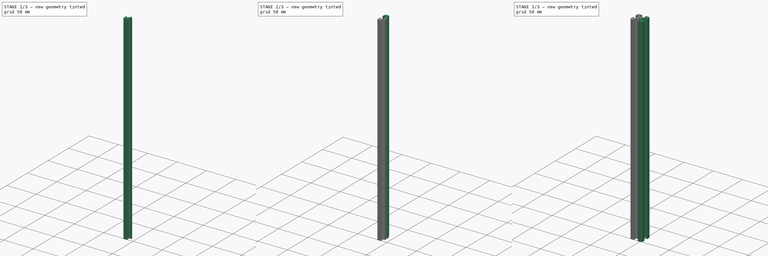
[diagram: build sequence overview — one tinted view per stage of 3, left to right]
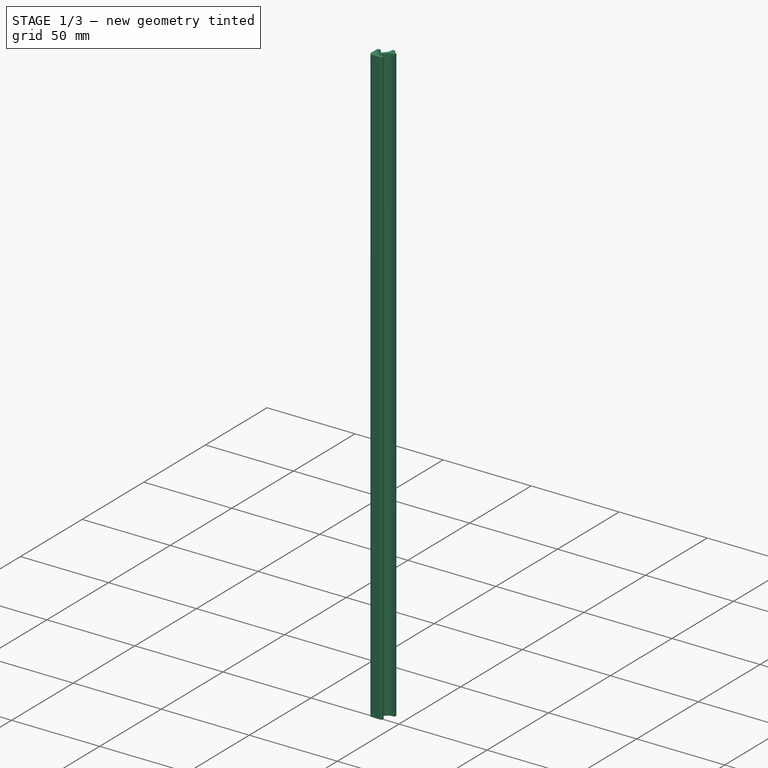
[diagram: stage 1 of 3 — iso view after this stage's code; geometry added in this stage tinted green]
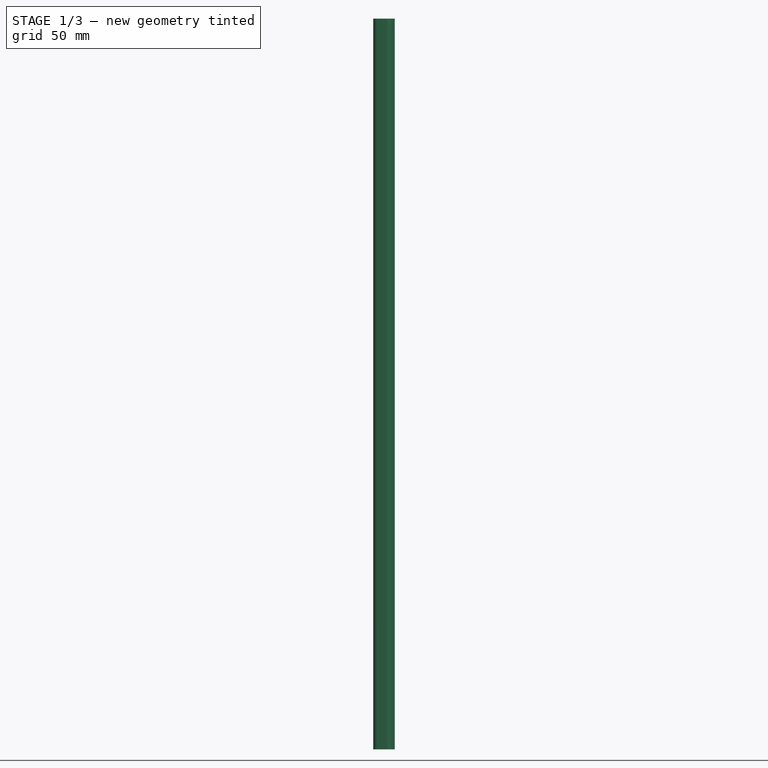
[diagram: stage 1 of 3 — front view after this stage's code; geometry added in this stage tinted green]
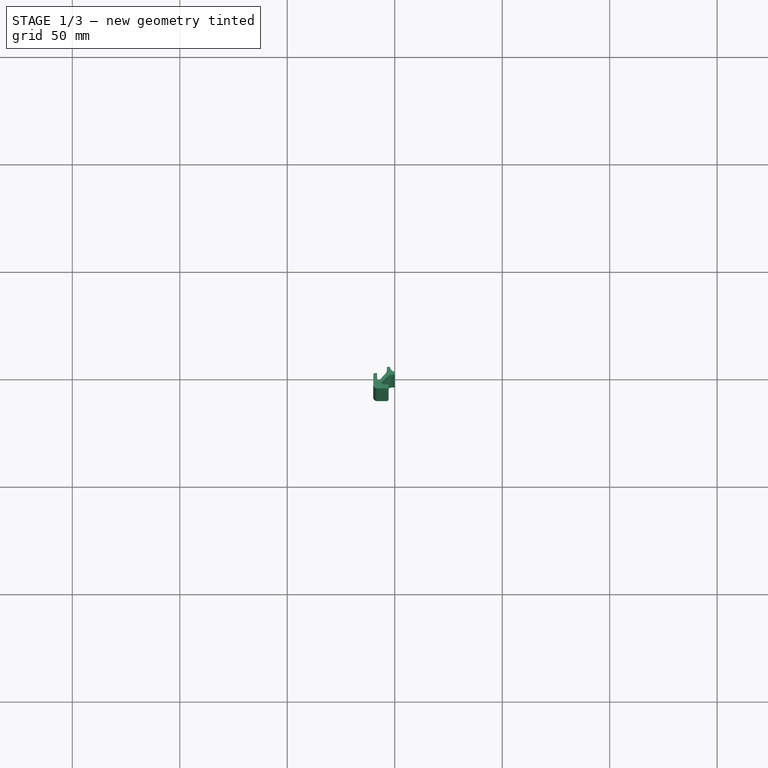
[diagram: stage 1 of 3 — top view after this stage's code; geometry added in this stage tinted green]
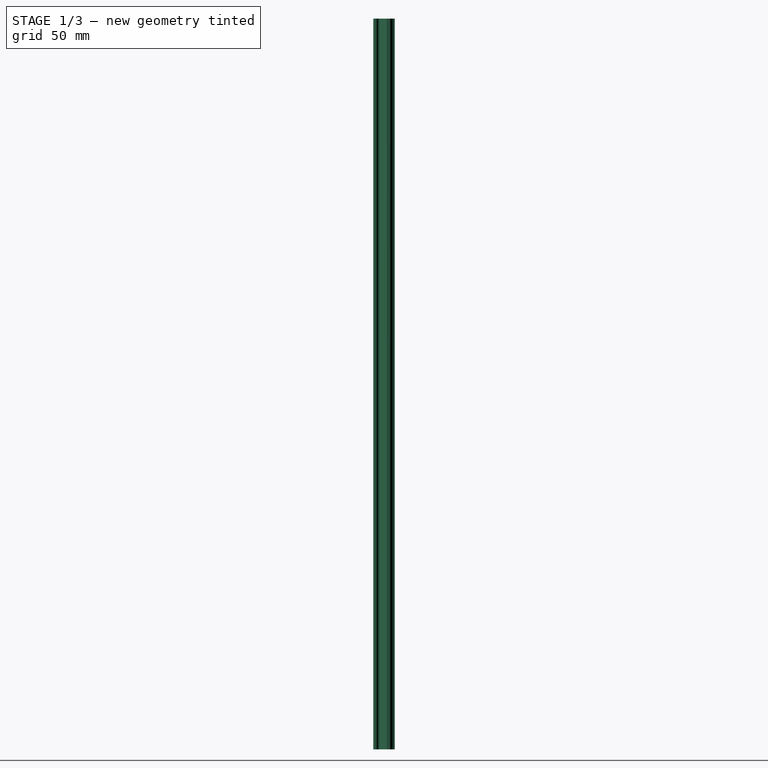
[diagram: stage 1 of 3 — right view after this stage's code; geometry added in this stage tinted green]
FCSTD DOCUMENT  (FreeCAD 1.0R39109 (Git))
Label: 20x20-I-Type-340mm
License: All rights reserved
LicenseURL: https://en.wikipedia.org/wiki/All_rights_reserved
objects: Part::Mirroring×2, Part::MultiFuse×2, Sketcher::SketchObject×1, PartDesign::Pad×1, PartDesign::Body×1
note: 10 computed .brp shape members not serialized (recipe doc carries the construction recipe); baked Part::Feature solids carry a one-line shape summary decoded from their .brp

FEATURE [Sketcher::SketchObject] Sketch
  ArcFitTolerance = 0
  AttachmentSupport = -> [XY_Plane]
  FullyConstrained = true
  MakeInternals = false
  MapMode = 5
  sketch-geometry (22):
    g0: ArcOfCircle CenterX=0 CenterY=0 CenterZ=0 NormalX=0 NormalY=0 NormalZ=1 AngleXU=0 Radius=2.15 StartAngle=1.5708 EndAngle=3.14159
    g1: LineSegment StartX=-8.28947 StartY=10 StartZ=0 EndX=-3.65947 EndY=10 EndZ=0
    g2: LineSegment StartX=-2.85947 StartY=9.2 StartZ=0 EndX=-2.85947 EndY=8.5 EndZ=0
    g3: LineSegment StartX=-3.15947 StartY=8.2 StartZ=0 EndX=-5.32947 EndY=8.2 EndZ=0
    g4: LineSegment StartX=-5.8555 StartY=6.87 StartZ=0 EndX=-3.36 EndY=4.53 EndZ=0
    g5: LineSegment StartX=-1.135 StartY=3.65 StartZ=0 EndX=2e-16 EndY=3.65 EndZ=0
    g6: LineSegment StartX=1e-16 StartY=3.65 StartZ=0 EndX=1e-16 EndY=2.15 EndZ=0
    g7: LineSegment StartX=-10 StartY=8.28947 StartZ=0 EndX=-10 EndY=3.65947 EndZ=0
    g8: LineSegment StartX=-9.2 StartY=2.85947 StartZ=0 EndX=-8.5 EndY=2.85947 EndZ=0
    g9: LineSegment StartX=-8.2 StartY=3.15947 StartZ=0 EndX=-8.2 EndY=5.32947 EndZ=0
    g10: LineSegment StartX=-6.87 StartY=5.8555 StartZ=0 EndX=-4.53 EndY=3.36 EndZ=0
    g11: ArcOfCircle CenterX=-8.28947 CenterY=8.28947 CenterZ=0 NormalX=0 NormalY=0 NormalZ=1 AngleXU=0 Radius=1.71053 StartAngle=1.5708 EndAngle=3.14159
    g12: ArcOfCircle CenterX=-9.2 CenterY=3.65947 CenterZ=0 NormalX=0 NormalY=0 NormalZ=1 AngleXU=0 Radius=0.8 StartAngle=3.14159 EndAngle=4.71239
    g13: ArcOfCircle CenterX=-8.5 CenterY=3.15947 CenterZ=0 NormalX=0 NormalY=0 NormalZ=1 AngleXU=0 Radius=0.3 StartAngle=4.71239 EndAngle=6.28319
    g14: ArcOfCircle CenterX=-7.43098 CenterY=5.32947 CenterZ=0 NormalX=0 NormalY=0 NormalZ=1 AngleXU=0 Radius=0.769022 StartAngle=0.753252 EndAngle=3.14159
    g15: ArcOfCircle CenterX=-1.135 CenterY=6.90286 CenterZ=0 NormalX=0 NormalY=0 NormalZ=1 AngleXU=0 Radius=3.25286 StartAngle=3.95914 EndAngle=4.71239
    g16: ArcOfCircle CenterX=-5.32947 CenterY=7.43098 CenterZ=0 NormalX=0 NormalY=0 NormalZ=1 AngleXU=0 Radius=0.769022 StartAngle=1.5708 EndAngle=3.95914
    g17: ArcOfCircle CenterX=-3.15947 CenterY=8.5 CenterZ=0 NormalX=0 NormalY=0 NormalZ=1 AngleXU=0 Radius=0.3 StartAngle=4.71239 EndAngle=6.28319
    g18: ArcOfCircle CenterX=-3.65947 CenterY=9.2 CenterZ=0 NormalX=0 NormalY=0 NormalZ=1 AngleXU=0 Radius=0.8 StartAngle=4e-16 EndAngle=1.5708
    g19: LineSegment StartX=-3.65 StartY=1.135 StartZ=0 EndX=-3.65 EndY=2e-16 EndZ=0
    g20: LineSegment StartX=-3.65 StartY=3e-16 StartZ=0 EndX=-2.15 EndY=3e-16 EndZ=0
    g21: ArcOfCircle CenterX=-6.90286 CenterY=1.135 CenterZ=0 NormalX=0 NormalY=0 NormalZ=1 AngleXU=0 Radius=3.25286 StartAngle=0 EndAngle=0.753252
  constraints (57):
    c: Diameter(g0) = 4.3
    c: Horizontal(g1)
    c: Coincident(g5,g6)
    c: Vertical(g6)
    c: Vertical(g7)
    c: Tangent(g7,g11) = -1.5708
    c: Tangent(g1,g11) = 1.5708
    c: Tangent(g7,g12) = -1.5708
    c: Tangent(g8,g12) = -1.5708
    c: Tangent(g8,g13) = -1.5708
    c: Tangent(g9,g13) = -1.5708
    c: Tangent(g9,g14) = 1.5708
    c: Tangent(g10,g14) = 1.5708
    c: Tangent(g4,g15) = -1.5708
    c: Tangent(g5,g15) = -1.5708
    c: Tangent(g4,g16) = -1.5708
    c: Tangent(g3,g16) = -1.5708
    c: Tangent(g3,g17) = 1.5708
    c: Tangent(g2,g17) = 1.5708
    c: Tangent(g2,g18) = 1.5708
    c: Tangent(g1,g18) = 1.5708
    c: Vertical(g19)
    c: Coincident(g19,g20)
    c: Horizontal(g20)
    c: Tangent(g10,g21) = 1.5708
    c: Tangent(g19,g21) = 1.5708
    c: DistanceY(g6,g6) = 1.5
    c: DistanceX(g20,g20) = 1.5
    c: DistanceY(g0,g20) = 0
    c: DistanceX(g6,g0) = 0
    c: Coincident(g0,g20)
    c: Coincident(g0,g6)
    c: DistanceX(g7,g0) = 10
    c: DistanceY(g0,g1) = 10
    c: Horizontal(g5)
    c: DistanceX(g5,g5) = 1.135
    c: DistanceY(g19,g19) = 1.135
    c: DistanceX(g1,g1) = 4.63
    c: DistanceY(g7,g7) = 4.63
    c: DistanceX(g4,g0) = 3.36
    c: DistanceY(g0,g4) = 2.38
    c: DistanceY(g0,g10) = 3.36
    c: DistanceX(g10,g0) = 2.38
    c: DistanceY(g0,g4) = 4.72
    c: DistanceX(g10,g0) = 4.72
    c: DistanceX(g3,g3) = 2.17
    c: DistanceY(g9,g9) = 2.17
    c: Horizontal(g3)
    c: Vertical(g9)
    c: DistanceY(g3,g1) = 1.8
    c: DistanceX(g7,g9) = 1.8
    c: DistanceY(g3,g2) = 0.3
    c: DistanceX(g1,g2) = 0.8
    c: DistanceY(g2,g1) = 0.8
    c: DistanceY(g8,g9) = 0.3
    c: DistanceY(g8,g7) = 0.8
    c: Coincident(g0,g-1)
FEATURE [PartDesign::Pad] Pad  label="SetLength"
  Direction = (0,0,1)
  Length = 340
  Length2 = 10
  Profile = -> Sketch
  ReferenceAxis = -> Sketch [N_Axis]
  Suppressed = false
  Type = 0
FEATURE [PartDesign::Body] Body
  AllowCompound = false
  Group = -> [Sketch,Pad]
  Origin = -> Origin
  Tip = -> Pad
FEATURE [Part::Mirroring] Part__Mirroring  label="SetLength (Mirror #1)"
  Base = (0,0,0)
  Normal = (0,1,0)
  Source = -> Pad
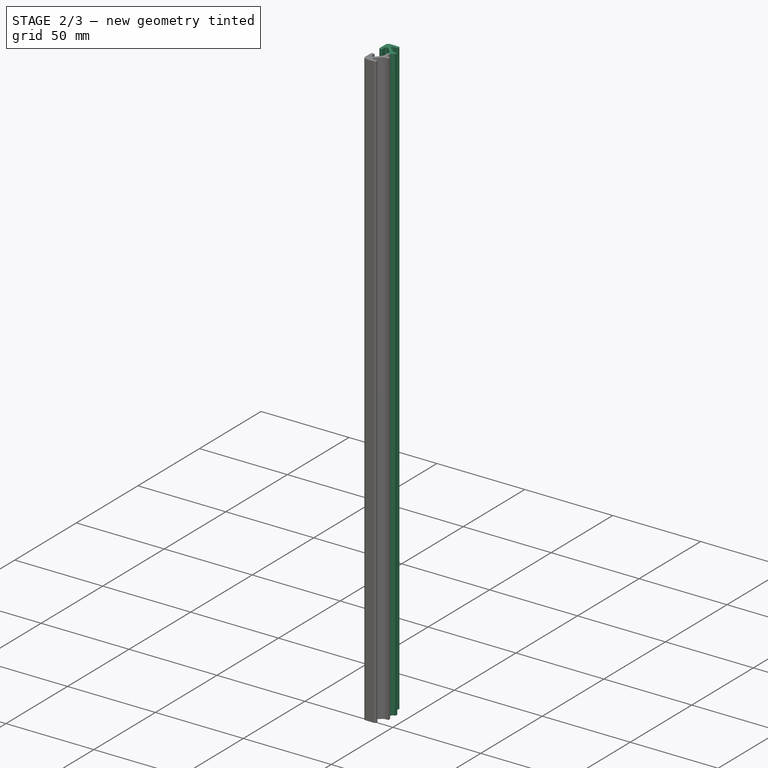
[diagram: stage 2 of 3 — iso view after this stage's code; geometry added in this stage tinted green]
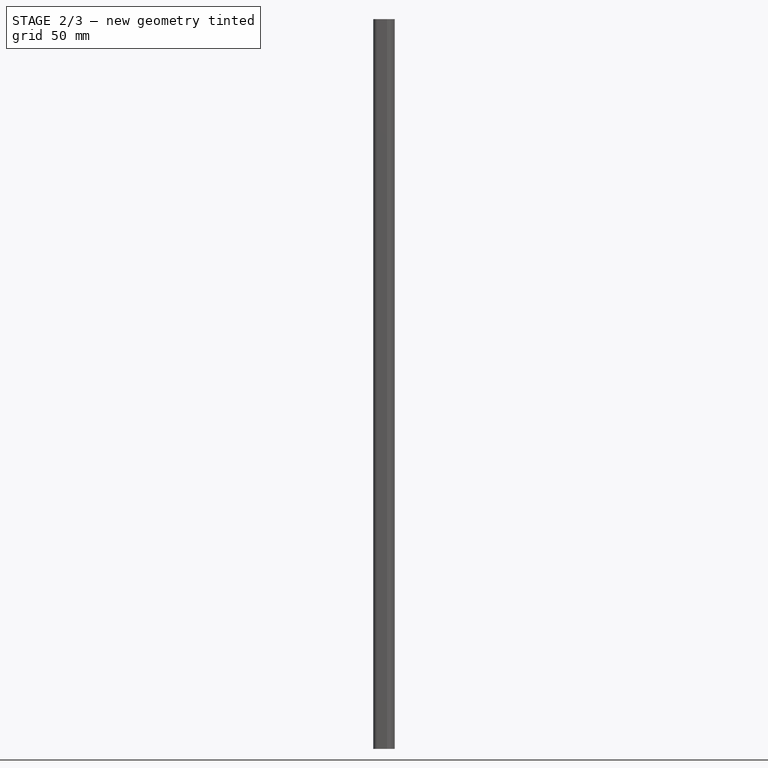
[diagram: stage 2 of 3 — front view after this stage's code; geometry added in this stage tinted green]
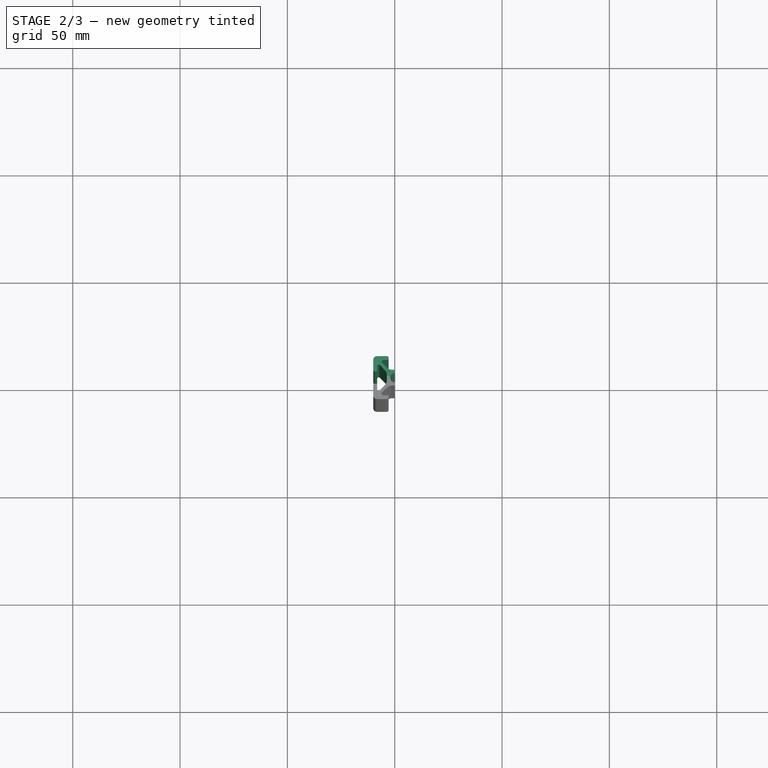
[diagram: stage 2 of 3 — top view after this stage's code; geometry added in this stage tinted green]
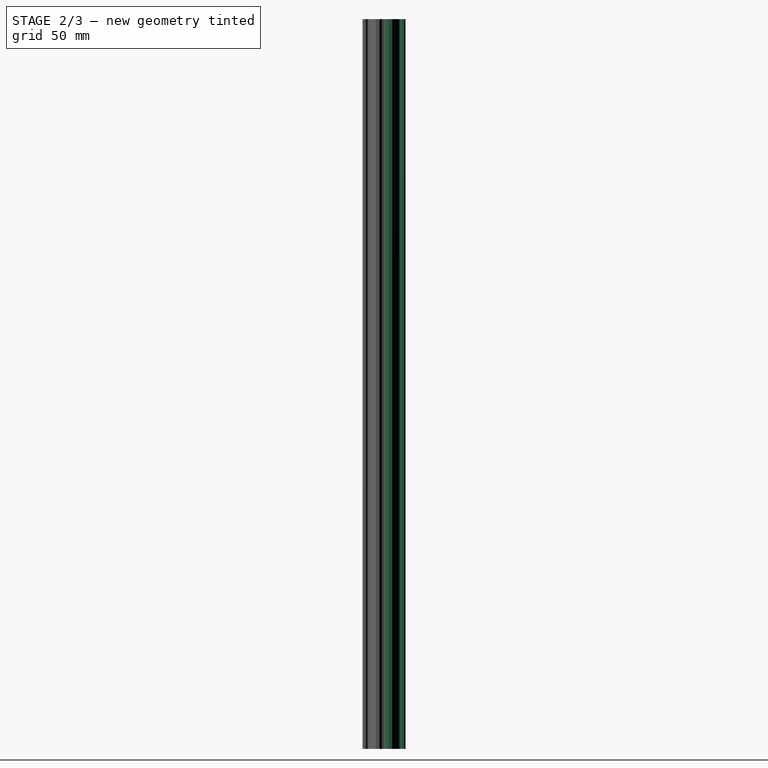
[diagram: stage 2 of 3 — right view after this stage's code; geometry added in this stage tinted green]
FEATURE [Part::MultiFuse] Fusion
  Shapes = -> [Part__Mirroring,Pad]
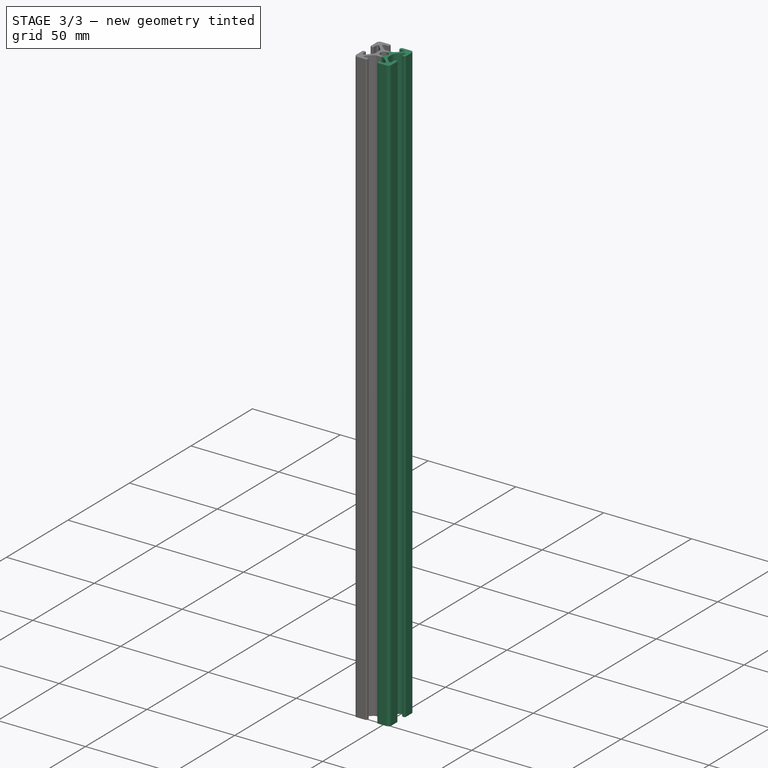
[diagram: stage 3 of 3 — iso view after this stage's code; geometry added in this stage tinted green]
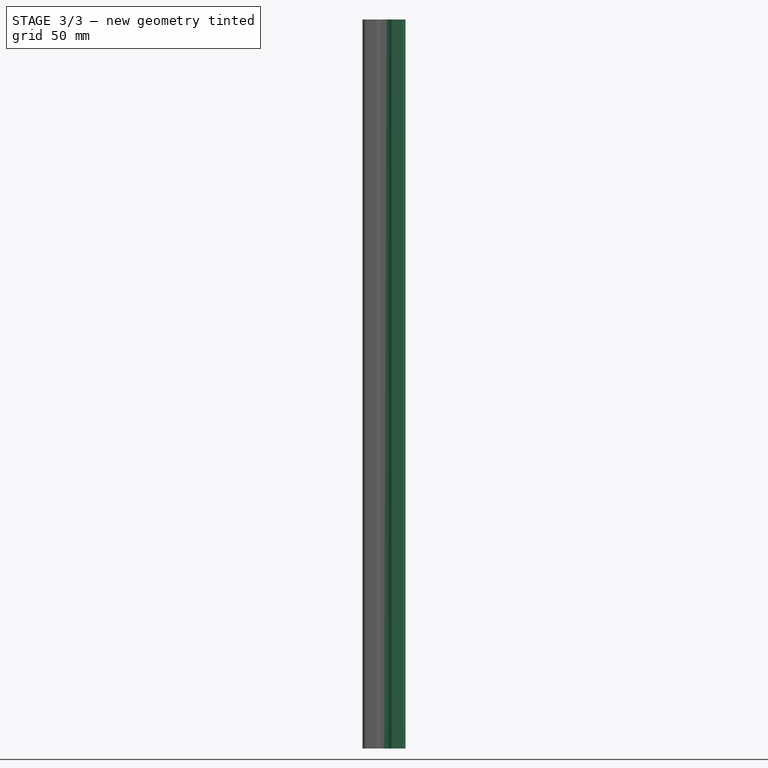
[diagram: stage 3 of 3 — front view after this stage's code; geometry added in this stage tinted green]
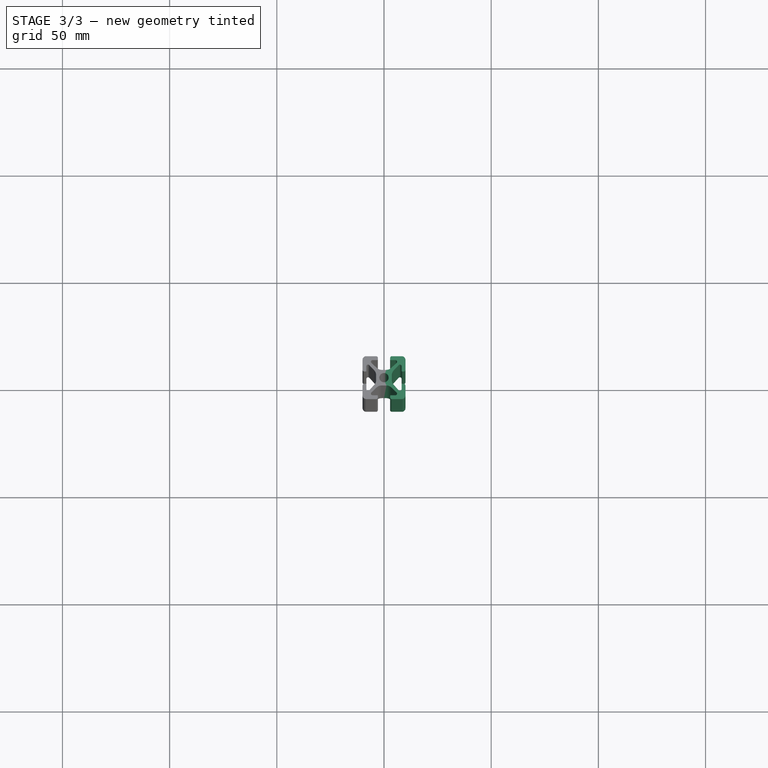
[diagram: stage 3 of 3 — top view after this stage's code; geometry added in this stage tinted green]
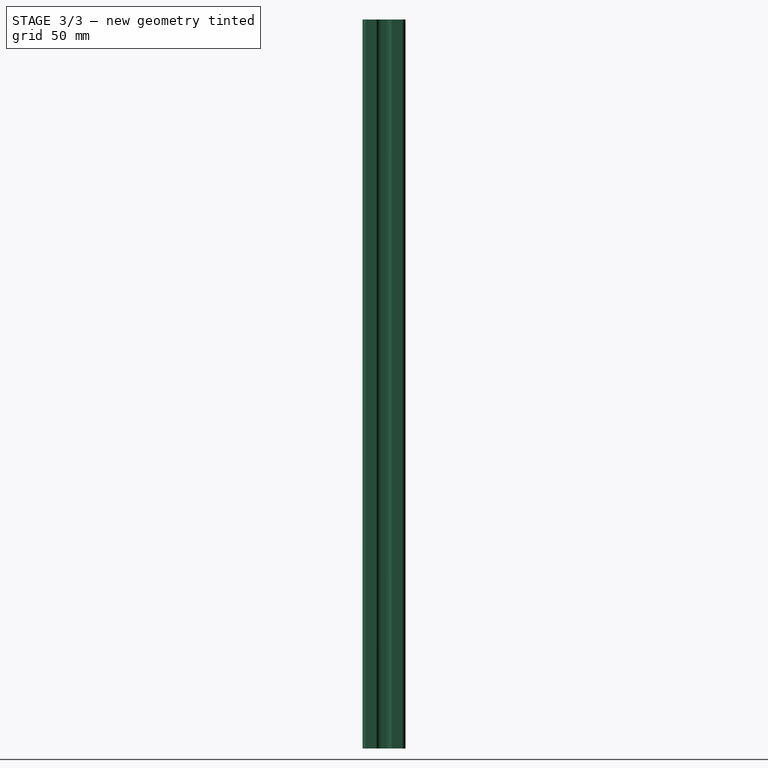
[diagram: stage 3 of 3 — right view after this stage's code; geometry added in this stage tinted green]
FEATURE [Part::Mirroring] Part__Mirroring001  label="Fusion (Mirror #2)"
  Base = (0,0,0)
  Normal = (1,0,0)
  Source = -> Fusion
FEATURE [Part::MultiFuse] Fusion001  label="Profile-20x20-I-Type_Slot5"
  Shapes = -> [Part__Mirroring001,Fusion]
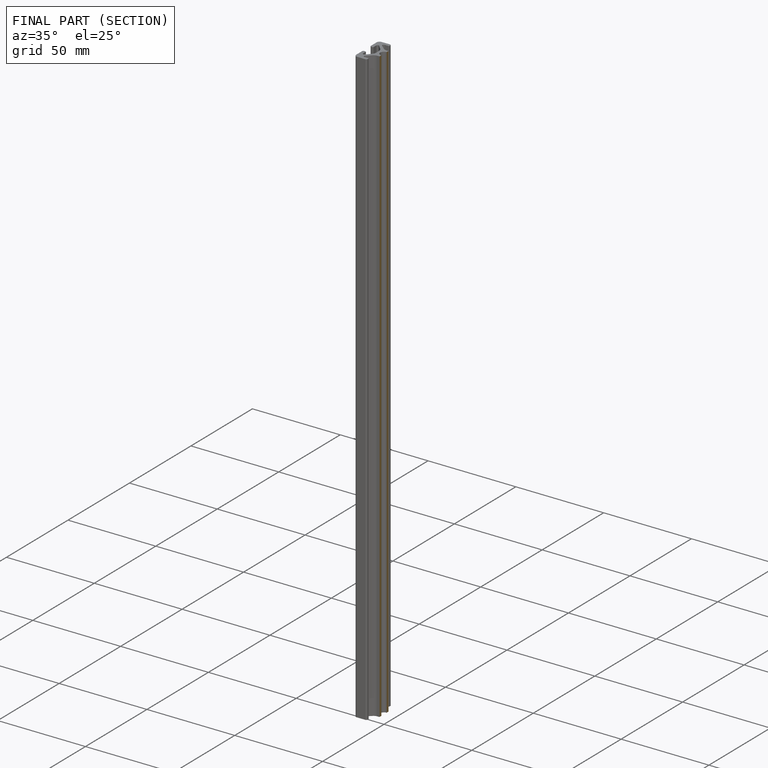
[diagram: finished part — half-section view (interior)]
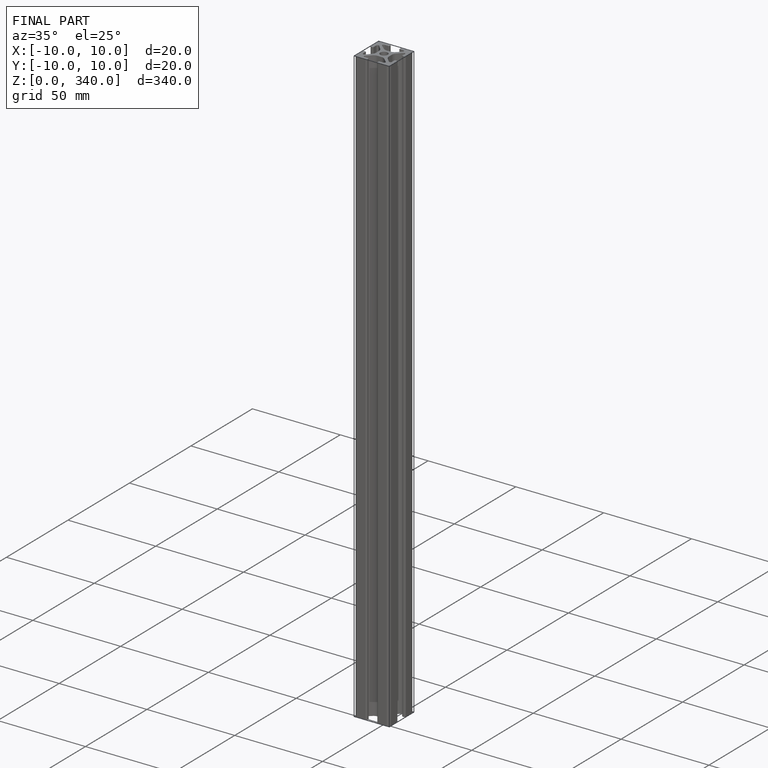
[diagram: finished part — iso view with bounding-box wireframe]
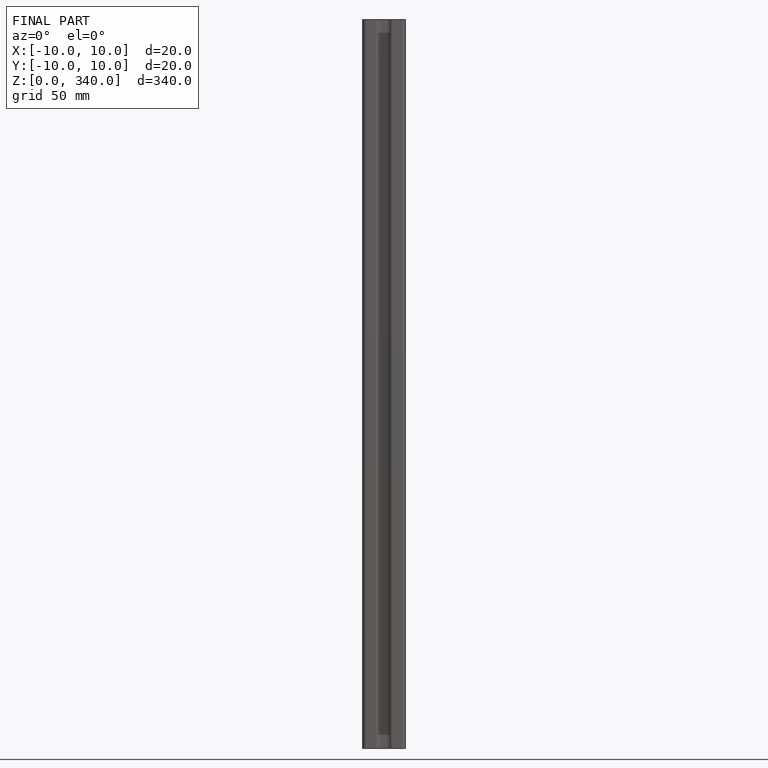
[diagram: finished part — front view with bounding-box wireframe]
